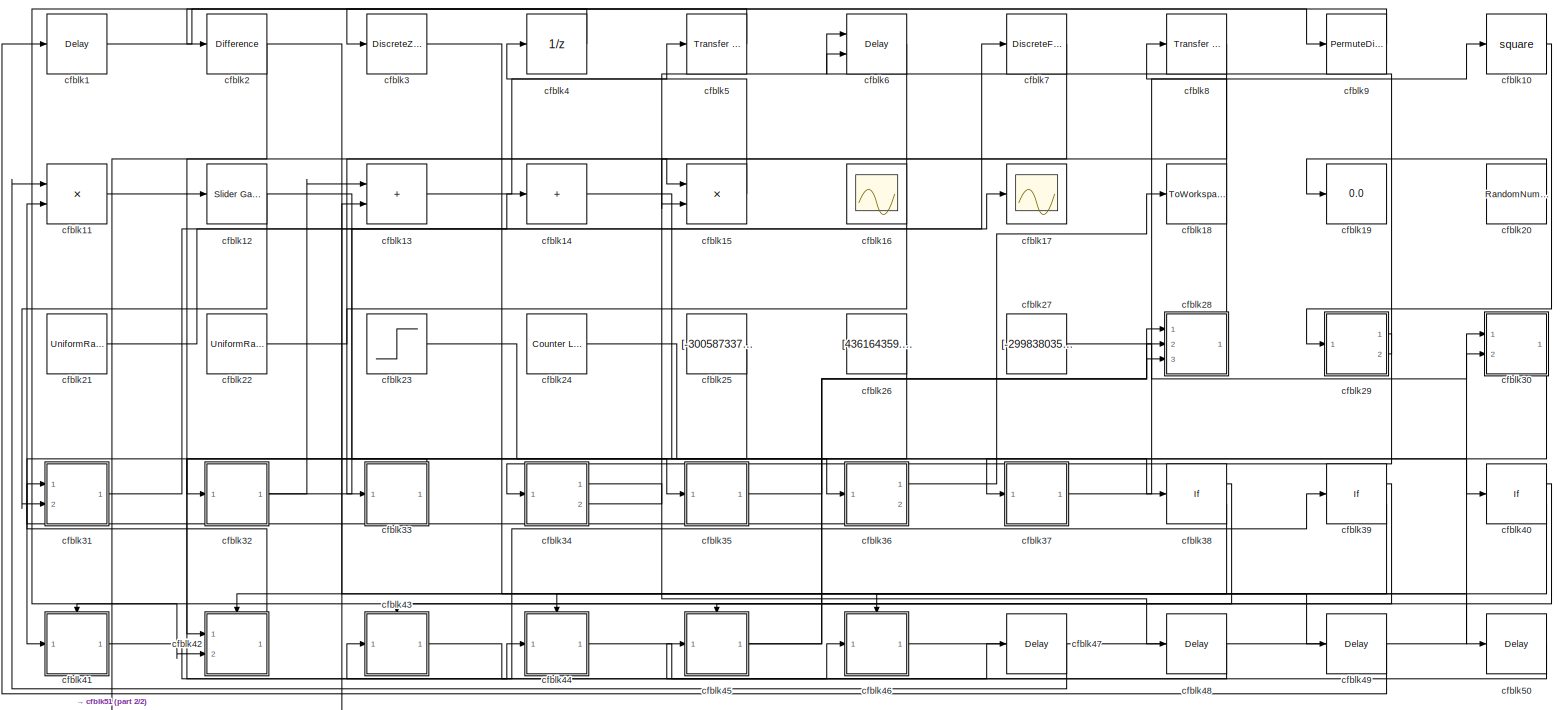
[diagram: root canvas - part 1/2, most of the canvas]
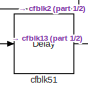
[diagram: root canvas - part 2/2, bottom left region]
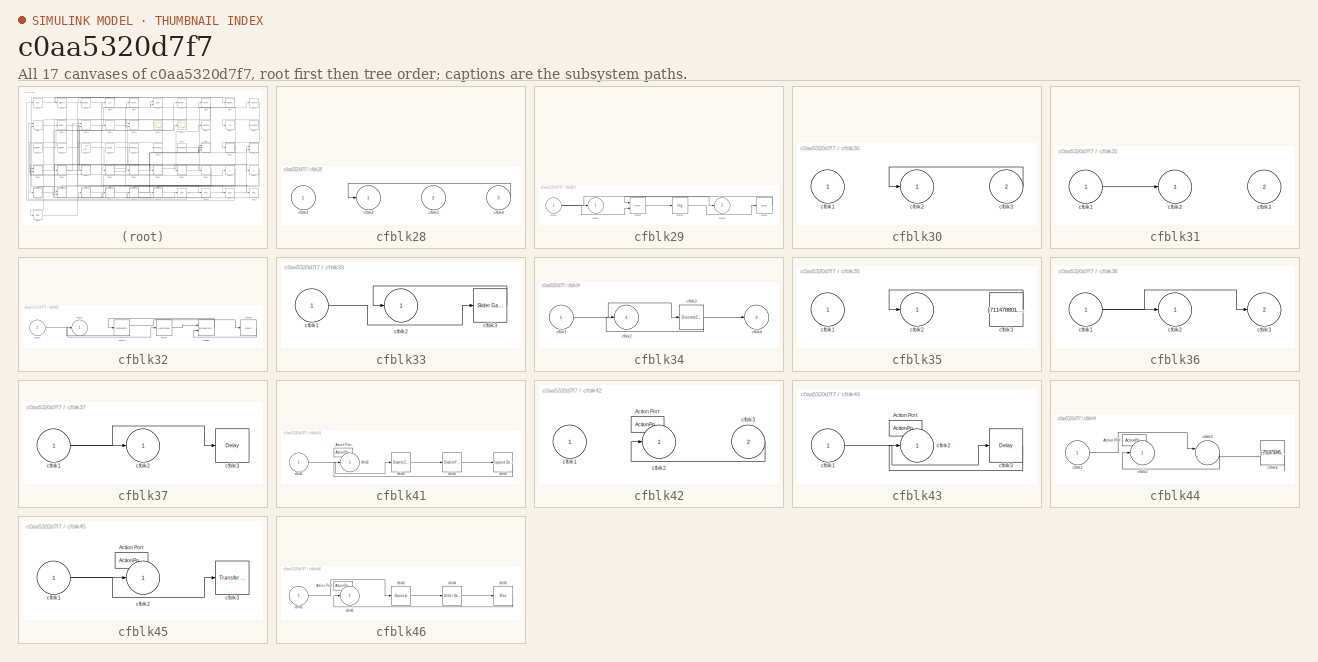
[diagram: thumbnail index - all 17 canvases of the model, root first then tree order]
MODEL slx_c0aa5320d7f7
KIND model
CONFIG AbsTol = auto
CONFIG EnableMultiTasking = off
CONFIG FixedStep = auto
CONFIG MaxStep = auto
CONFIG MinStep = auto
CONFIG RelTol = 1e-3
CONFIG SampleTimeConstraint = Unconstrained
CONFIG SolverName = VariableStepAuto
CONFIG StartTime = 0.0
CONFIG StopTime = 10.0
BLOCK [Delay] cfblk1
  InputPortMap = u0
  Ports = [1, 1]
  SampleTime = 1
BLOCK [Math] cfblk10
  Operator = square
  Ports = [1, 1]
BLOCK [Product] cfblk11
  Inputs = **
  Ports = [2, 1]
BLOCK [Reference] cfblk12  REF=simulink/Math
Operations/Slider
Gain
  Ports = [1, 1]
  SourceBlock = simulink/Math\nOperations/Slider\nGain
  SourceProductBaseCode = SL
  SourceType = Slider Gain
BLOCK [Sum] cfblk13
  IconShape = rectangular
  Ports = [2, 1]
BLOCK [Sum] cfblk14
  IconShape = rectangular
  Inputs = +
  Ports = [1, 1]
BLOCK [Product] cfblk15
  Inputs = **
  Ports = [2, 1]
BLOCK [Scope] cfblk16
  Floating = on
  NumInputPorts = 1
  Ports = []
BLOCK [Scope] cfblk17
  Floating = off
  NumInputPorts = 1
  Ports = [1]
BLOCK [ToWorkspace] cfblk18
  FixptAsFi = on
  MaxDataPoints = inf
  Ports = [1]
  SampleTime = -1
  SaveFormat = Timeseries
  VariableName = dtryfnf
BLOCK [Display] cfblk19
  Decimation = 1
  Ports = [1]
BLOCK [Reference] cfblk2  REF=simulink/Discrete/Difference
  Ports = [1, 1]
  SourceBlock = simulink/Discrete/Difference
  SourceProductBaseCode = SL
  SourceType = Difference
BLOCK [RandomNumber] cfblk20
  Mean = [-86357.100139]
  SampleTime = 0.1
  Seed = [451125868.000000]
  Variance = [81821.434767]
BLOCK [UniformRandomNumber] cfblk21
  Maximum = [4408331130.961056]
  Minimum = [-1874443180.751388]
  SampleTime = 0.1
  Seed = [33260809.000000]
BLOCK [UniformRandomNumber] cfblk22
  Maximum = [9712076269.160019]
  Minimum = [-459376011.363916]
  SampleTime = 0.1
  Seed = [42095909.000000]
BLOCK [Step] cfblk23
  After = [732105362.691046]
  Before = [-237098877.927224]
  SampleTime = 0
  Time = [49.000000]
BLOCK [Reference] cfblk24  REF=simulink/Sources/Counter
Limited
  Ports = [0, 1]
  SourceBlock = simulink/Sources/Counter\nLimited
  SourceProductBaseCode = SL
  SourceType = Counter Limited
BLOCK [Constant] cfblk25
  SampleTime = 1
  Value = [-300587337.513384]
BLOCK [Constant] cfblk26
  SampleTime = 1
  Value = [436164359.726113]
BLOCK [Constant] cfblk27
  SampleTime = 1
  Value = [-299838035.771874]
BLOCK [SubSystem] cfblk28
  Ports = [3, 1]
  RequestExecContextInheritance = off
BLOCK [Inport] cfblk28/cfblk1
BLOCK [Outport] cfblk28/cfblk2
BLOCK [Inport] cfblk28/cfblk3
  Port = 2
BLOCK [Inport] cfblk28/cfblk4
  Port = 3
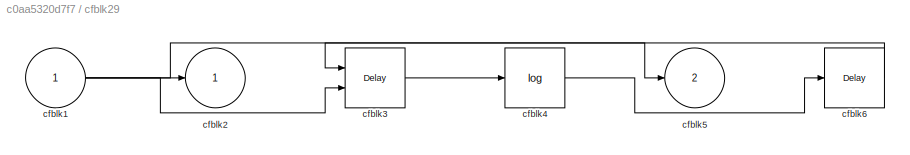
BLOCK [SubSystem] cfblk29
  Ports = [1, 2]
  RequestExecContextInheritance = off
BLOCK [Inport] cfblk29/cfblk1
BLOCK [Outport] cfblk29/cfblk2
BLOCK [Delay] cfblk29/cfblk3
  InputPortMap = u0,e6
  Ports = [2, 1]
  SampleTime = 1
  ShowEnablePort = on
BLOCK [Math] cfblk29/cfblk4
  Operator = log
  Ports = [1, 1]
BLOCK [Outport] cfblk29/cfblk5
  Port = 2
BLOCK [Delay] cfblk29/cfblk6
  InputPortMap = u0
  Ports = [1, 1]
  SampleTime = 1
BLOCK [DiscreteZeroPole] cfblk3
  Gain = 1
  Poles = [0 0.5]
BLOCK [SubSystem] cfblk30
  Ports = [2, 1]
  RequestExecContextInheritance = off
BLOCK [Inport] cfblk30/cfblk1
BLOCK [Outport] cfblk30/cfblk2
BLOCK [Inport] cfblk30/cfblk3
  Port = 2
BLOCK [SubSystem] cfblk31
  Ports = [2, 1]
  RequestExecContextInheritance = off
BLOCK [Inport] cfblk31/cfblk1
BLOCK [Outport] cfblk31/cfblk2
BLOCK [Inport] cfblk31/cfblk3
  Port = 2
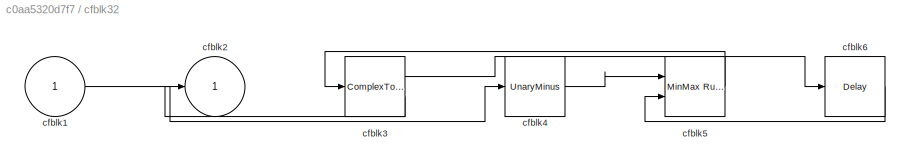
BLOCK [SubSystem] cfblk32
  Ports = [1, 1]
  RequestExecContextInheritance = off
BLOCK [Inport] cfblk32/cfblk1
BLOCK [Outport] cfblk32/cfblk2
BLOCK [ComplexToMagnitudeAngle] cfblk32/cfblk3
  Ports = [1, 2]
BLOCK [UnaryMinus] cfblk32/cfblk4
BLOCK [Reference] cfblk32/cfblk5  REF=simulink/Math
Operations/MinMax
Running
Resettable
  Ports = [2, 1]
  SourceBlock = simulink/Math\nOperations/MinMax\nRunning\nResettable
  SourceProductBaseCode = SL
  SourceType = MinMax Running Resettable
BLOCK [Delay] cfblk32/cfblk6
  InputPortMap = u0
  Ports = [1, 1]
  SampleTime = 1
BLOCK [SubSystem] cfblk33
  Ports = [1, 1]
  RequestExecContextInheritance = off
BLOCK [Inport] cfblk33/cfblk1
BLOCK [Outport] cfblk33/cfblk2
BLOCK [Reference] cfblk33/cfblk3  REF=simulink/Math
Operations/Slider
Gain
  Ports = [1, 1]
  SourceBlock = simulink/Math\nOperations/Slider\nGain
  SourceProductBaseCode = SL
  SourceType = Slider Gain
BLOCK [SubSystem] cfblk34
  Ports = [1, 2]
  RequestExecContextInheritance = off
BLOCK [Inport] cfblk34/cfblk1
BLOCK [Outport] cfblk34/cfblk2
BLOCK [DiscreteZeroPole] cfblk34/cfblk3
  Gain = 1
  Poles = [0 0.5]
BLOCK [Outport] cfblk34/cfblk4
  Port = 2
BLOCK [SubSystem] cfblk35
  Ports = [1, 1]
  RequestExecContextInheritance = off
BLOCK [Inport] cfblk35/cfblk1
BLOCK [Outport] cfblk35/cfblk2
BLOCK [Constant] cfblk35/cfblk3
  SampleTime = 1
  Value = [711478801.923983]
BLOCK [SubSystem] cfblk36
  Ports = [1, 2]
  RequestExecContextInheritance = off
BLOCK [Inport] cfblk36/cfblk1
BLOCK [Outport] cfblk36/cfblk2
BLOCK [Outport] cfblk36/cfblk3
  Port = 2
BLOCK [SubSystem] cfblk37
  Ports = [1, 1]
  RequestExecContextInheritance = off
BLOCK [Inport] cfblk37/cfblk1
BLOCK [Outport] cfblk37/cfblk2
BLOCK [Delay] cfblk37/cfblk3
  InputPortMap = u0
  Ports = [1, 1]
  SampleTime = 1
BLOCK [If] cfblk38
  IfExpression = u1 >= 0
  Ports = [1, 2]
  SampleTime = 1
BLOCK [If] cfblk39
  IfExpression = u1 >= 0
  Ports = [1, 2]
  SampleTime = 1
BLOCK [UnitDelay] cfblk4
  HasFrameUpgradeWarning = on
BLOCK [If] cfblk40
  IfExpression = u1 >= 0
  Ports = [1, 2]
  SampleTime = 1
BLOCK [SubSystem] cfblk41
  Ports = [1, 1, 0, 0, 0, 0, 0, 1]
  RequestExecContextInheritance = off
  TreatAsAtomicUnit = on
BLOCK [ActionPort] cfblk41/Action Port
  ActionPortLabel = if(u1 >= 0)
BLOCK [Inport] cfblk41/cfblk1
BLOCK [Outport] cfblk41/cfblk2
BLOCK [DiscreteZeroPole] cfblk41/cfblk3
  Gain = 1
  Poles = [0 0.5]
  SampleTime = -1
BLOCK [DiscreteFilter] cfblk41/cfblk4
  InputPortMap = u0
  Ports = [1, 1]
BLOCK [Reference] cfblk41/cfblk5  REF=simulink/Discrete/Tapped Delay
  Ports = [1, 1]
  SourceBlock = simulink/Discrete/Tapped Delay
  SourceProductBaseCode = SL
  SourceType = Tapped Delay Line
BLOCK [SubSystem] cfblk42
  Ports = [2, 1, 0, 0, 0, 0, 0, 1]
  RequestExecContextInheritance = off
  TreatAsAtomicUnit = on
BLOCK [ActionPort] cfblk42/Action Port
  ActionPortLabel = else
BLOCK [Inport] cfblk42/cfblk1
BLOCK [Outport] cfblk42/cfblk2
BLOCK [Inport] cfblk42/cfblk3
  Port = 2
BLOCK [SubSystem] cfblk43
  Ports = [1, 1, 0, 0, 0, 0, 0, 1]
  RequestExecContextInheritance = off
  TreatAsAtomicUnit = on
BLOCK [ActionPort] cfblk43/Action Port
  ActionPortLabel = if(u1 >= 0)
BLOCK [Inport] cfblk43/cfblk1
BLOCK [Outport] cfblk43/cfblk2
BLOCK [Delay] cfblk43/cfblk3
  InputPortMap = u0
  Ports = [1, 1]
BLOCK [SubSystem] cfblk44
  Ports = [1, 1, 0, 0, 0, 0, 0, 1]
  RequestExecContextInheritance = off
  TreatAsAtomicUnit = on
BLOCK [ActionPort] cfblk44/Action Port
  ActionPortLabel = else
BLOCK [Inport] cfblk44/cfblk1
BLOCK [Outport] cfblk44/cfblk2
BLOCK [Sum] cfblk44/cfblk3
  Inputs = |++
  Ports = [2, 1]
BLOCK [Constant] cfblk44/cfblk4
  SampleTime = 1
  Value = [-751973045.686507]
BLOCK [SubSystem] cfblk45
  Ports = [1, 1, 0, 0, 0, 0, 0, 1]
  RequestExecContextInheritance = off
  TreatAsAtomicUnit = on
BLOCK [ActionPort] cfblk45/Action Port
  ActionPortLabel = if(u1 >= 0)
BLOCK [Inport] cfblk45/cfblk1
BLOCK [Outport] cfblk45/cfblk2
BLOCK [Reference] cfblk45/cfblk3  REF=simulink/Discrete/Transfer Fcn
Lead or Lag
  Ports = [1, 1]
  SourceBlock = simulink/Discrete/Transfer Fcn\nLead or Lag
  SourceProductBaseCode = SL
  SourceType = Lead or Lag Compensator
BLOCK [SubSystem] cfblk46
  Ports = [1, 1, 0, 0, 0, 0, 0, 1]
  RequestExecContextInheritance = off
  TreatAsAtomicUnit = on
BLOCK [ActionPort] cfblk46/Action Port
  ActionPortLabel = else
BLOCK [Inport] cfblk46/cfblk1
BLOCK [Outport] cfblk46/cfblk2
BLOCK [Squeeze] cfblk46/cfblk3
BLOCK [Reference] cfblk46/cfblk4  REF=simulink/Math
Operations/Slider
Gain
  Ports = [1, 1]
  SourceBlock = simulink/Math\nOperations/Slider\nGain
  SourceProductBaseCode = SL
  SourceType = Slider Gain
BLOCK [Bias] cfblk46/cfblk5
  Bias = [-766016835.425215]
  SaturateOnIntegerOverflow = off
BLOCK [Delay] cfblk47
  InputPortMap = u0
  Ports = [1, 1]
  SampleTime = 1
BLOCK [Delay] cfblk48
  InputPortMap = u0
  Ports = [1, 1]
  SampleTime = 1
BLOCK [Delay] cfblk49
  InputPortMap = u0
  Ports = [1, 1]
  SampleTime = 1
BLOCK [Reference] cfblk5  REF=simulink/Discrete/Transfer Fcn
Real Zero
  Ports = [1, 1]
  SourceBlock = simulink/Discrete/Transfer Fcn\nReal Zero
  SourceProductBaseCode = SL
  SourceType = Transfer Fcn Real Zero
BLOCK [Delay] cfblk50
  InputPortMap = u0
  Ports = [1, 1]
  SampleTime = 1
BLOCK [Delay] cfblk51
  InputPortMap = u0
  Ports = [1, 1]
  SampleTime = 1
BLOCK [Delay] cfblk6
  InputPortMap = u0,e6
  Ports = [2, 1]
  SampleTime = 1
  ShowEnablePort = on
BLOCK [DiscreteFilter] cfblk7
  InputPortMap = u0
  Ports = [1, 1]
  SampleTime = 1
BLOCK [Reference] cfblk8  REF=simulink/Discrete/Transfer Fcn
Real Zero
  Ports = [1, 1]
  SourceBlock = simulink/Discrete/Transfer Fcn\nReal Zero
  SourceProductBaseCode = SL
  SourceType = Transfer Fcn Real Zero
BLOCK [PermuteDimensions] cfblk9
LINE cfblk10:1 -> cfblk29:1
LINE cfblk11:1 -> cfblk39:1
NET cfblk12:1 -> cfblk31:2, cfblk40:1
LINE cfblk13:1 -> cfblk5:1
LINE cfblk14:1 -> cfblk38:1
LINE cfblk15:1 -> cfblk4:1
LINE cfblk1:1 -> cfblk9:1
LINE cfblk20:1 -> cfblk19:1
LINE cfblk21:1 -> cfblk7:1
LINE cfblk22:1 -> cfblk15:1
LINE cfblk23:1 -> cfblk35:1
LINE cfblk24:1 -> cfblk36:1
LINE cfblk25:1 -> cfblk42:1
LINE cfblk26:1 -> cfblk41:1
LINE cfblk27:1 -> cfblk30:2
LINE cfblk28/cfblk4:1 -> cfblk28/cfblk2:1
LINE cfblk28:1 -> cfblk8:1
NET cfblk29/cfblk1:1 -> cfblk29/cfblk2:1, cfblk29/cfblk3:2, cfblk29/cfblk5:1
LINE cfblk29/cfblk3:1 -> cfblk29/cfblk4:1
LINE cfblk29/cfblk4:1 -> cfblk29/cfblk6:1
LINE cfblk29/cfblk6:1 -> cfblk29/cfblk3:1
LINE cfblk29:1 -> cfblk34:1
LINE cfblk29:2 -> cfblk6:2
NET cfblk2:1 -> cfblk50:1, cfblk51:1
LINE cfblk30/cfblk3:1 -> cfblk30/cfblk2:1
LINE cfblk30:1 -> cfblk37:1
LINE cfblk31/cfblk1:1 -> cfblk31/cfblk2:1
LINE cfblk31:1 -> cfblk14:1
LINE cfblk32/cfblk1:1 -> cfblk32/cfblk4:1
LINE cfblk32/cfblk3:1 -> cfblk32/cfblk6:1
LINE cfblk32/cfblk3:2 -> cfblk32/cfblk2:1
LINE cfblk32/cfblk4:1 -> cfblk32/cfblk5:1
LINE cfblk32/cfblk5:1 -> cfblk32/cfblk3:1
LINE cfblk32/cfblk6:1 -> cfblk32/cfblk5:2
NET cfblk32:1 -> cfblk13:1, cfblk17:1
LINE cfblk33/cfblk1:1 -> cfblk33/cfblk3:1
LINE cfblk33/cfblk3:1 -> cfblk33/cfblk2:1
LINE cfblk33:1 -> cfblk32:1
LINE cfblk34/cfblk1:1 -> cfblk34/cfblk3:1
NET cfblk34/cfblk3:1 -> cfblk34/cfblk2:1, cfblk34/cfblk4:1
LINE cfblk34:1 -> cfblk48:1
LINE cfblk34:2 -> cfblk6:1
LINE cfblk35/cfblk3:1 -> cfblk35/cfblk2:1
LINE cfblk35:1 -> cfblk28:2
NET cfblk36/cfblk1:1 -> cfblk36/cfblk2:1, cfblk36/cfblk3:1
LINE cfblk36:1 -> cfblk18:1
LINE cfblk36:2 -> cfblk31:1
NET cfblk37/cfblk1:1 -> cfblk37/cfblk2:1, cfblk37/cfblk3:1
LINE cfblk37:1 -> cfblk10:1
LINE cfblk38:1 -> cfblk41:ifaction
LINE cfblk38:2 -> cfblk42:ifaction
LINE cfblk39:1 -> cfblk43:ifaction
LINE cfblk39:2 -> cfblk44:ifaction
LINE cfblk3:1 -> cfblk49:1
LINE cfblk40:1 -> cfblk45:ifaction
LINE cfblk40:2 -> cfblk46:ifaction
LINE cfblk41/cfblk1:1 -> cfblk41/cfblk3:1
LINE cfblk41/cfblk3:1 -> cfblk41/cfblk4:1
LINE cfblk41/cfblk4:1 -> cfblk41/cfblk5:1
LINE cfblk41/cfblk5:1 -> cfblk41/cfblk2:1
LINE cfblk41:1 -> cfblk44:1
LINE cfblk42/cfblk3:1 -> cfblk42/cfblk2:1
LINE cfblk42:1 -> cfblk11:2
LINE cfblk43/cfblk1:1 -> cfblk43/cfblk3:1
LINE cfblk43/cfblk3:1 -> cfblk43/cfblk2:1
LINE cfblk43:1 -> cfblk47:1
LINE cfblk44/cfblk1:1 -> cfblk44/cfblk3:1
LINE cfblk44/cfblk3:1 -> cfblk44/cfblk2:1
LINE cfblk44/cfblk4:1 -> cfblk44/cfblk3:2
LINE cfblk44:1 -> cfblk46:1
NET cfblk45/cfblk1:1 -> cfblk45/cfblk2:1, cfblk45/cfblk3:1
NET cfblk45:1 -> cfblk28:1, cfblk28:3
LINE cfblk46/cfblk1:1 -> cfblk46/cfblk3:1
LINE cfblk46/cfblk3:1 -> cfblk46/cfblk4:1
LINE cfblk46/cfblk4:1 -> cfblk46/cfblk5:1
LINE cfblk46/cfblk5:1 -> cfblk46/cfblk2:1
LINE cfblk46:1 -> cfblk30:1
LINE cfblk47:1 -> cfblk11:1
LINE cfblk48:1 -> cfblk45:1
LINE cfblk49:1 -> cfblk1:1
LINE cfblk4:1 -> cfblk3:1
LINE cfblk50:1 -> cfblk43:1
LINE cfblk51:1 -> cfblk13:2
LINE cfblk5:1 -> cfblk2:1
LINE cfblk6:1 -> cfblk33:1
LINE cfblk7:1 -> cfblk12:1
LINE cfblk8:1 -> cfblk15:2
LINE cfblk9:1 -> cfblk42:2
note: NET lines group one-source signal fan-out (src -> all destinations, sorted); 1:1 wires keep LINE
